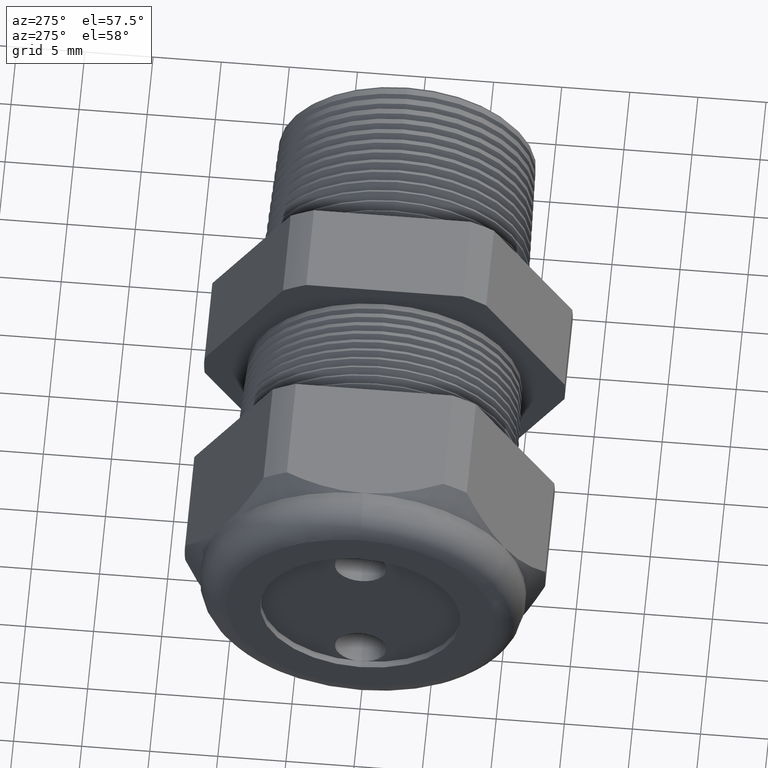
[diagram: clean part render]
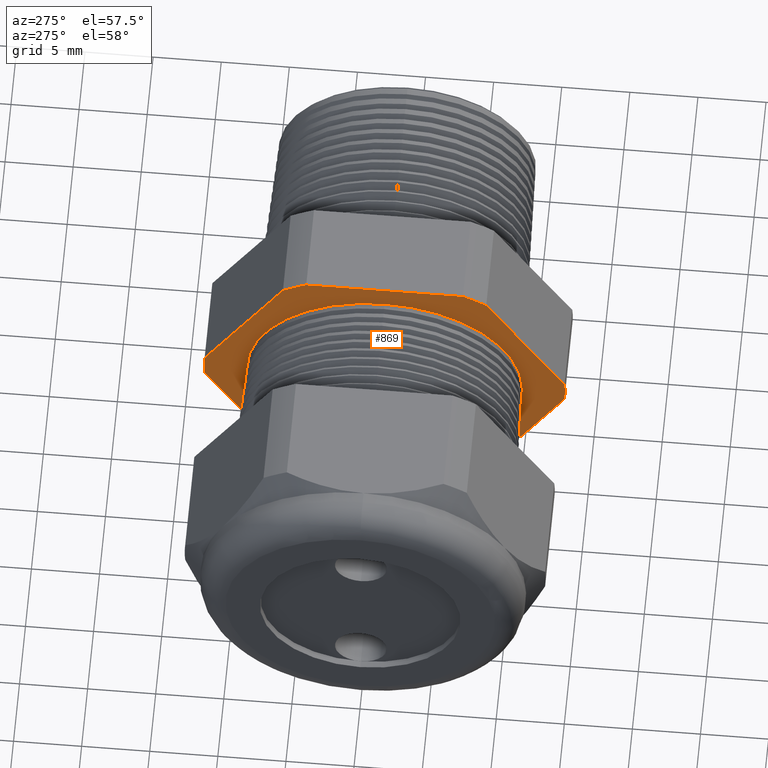
[diagram: same view with one face highlighted and labeled with its STEP entity id]
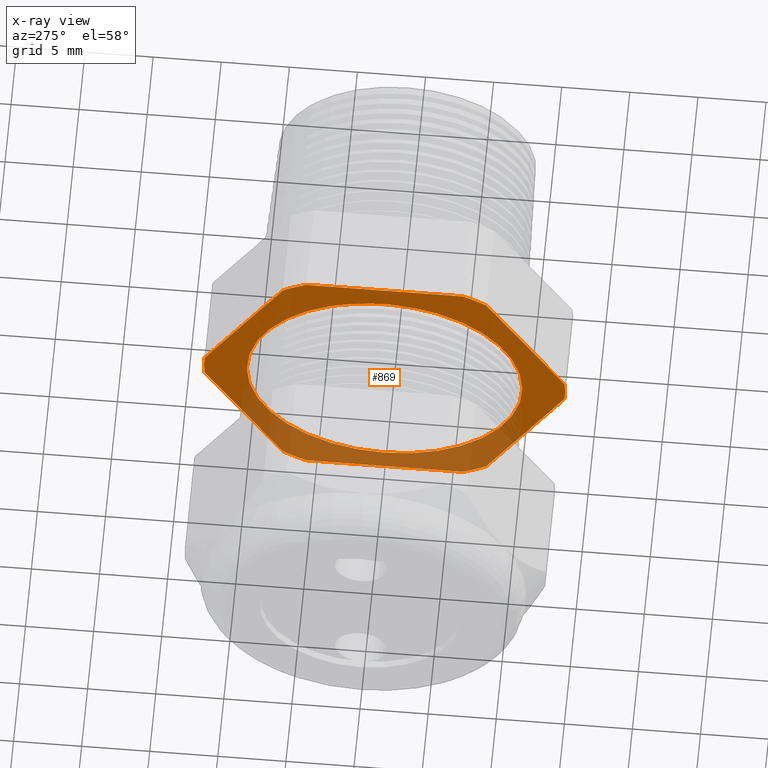
[diagram: x-ray of the same camera — body ghosted, the highlighted face saturated]
A machine part, auxiliary view. The second image highlights one B-rep face of the part: STEP entity #869.
The next image is the same camera in x-ray: the body ghosted, the highlighted face saturated — about 36% of this face is hidden behind the body in this view.
In plain terms, the highlighted planar face has unit normal (-1, 0, 0).
Its self-contained STEP definition (entity closure, byte-faithful):
#684 = VERTEX_POINT ( 'NONE', #3227 ) ;
#686 = EDGE_CURVE ( 'NONE', #701, #684, #3226, .T. ) ;
#698 = VERTEX_POINT ( 'NONE', #3262 ) ;
#701 = VERTEX_POINT ( 'NONE', #3261 ) ;
#748 = VERTEX_POINT ( 'NONE', #3369 ) ;
#750 = EDGE_CURVE ( 'NONE', #684, #748, #3368, .T. ) ;
#757 = EDGE_CURVE ( 'NONE', #698, #701, #3354, .T. ) ;
#770 = VERTEX_POINT ( 'NONE', #3395 ) ;
#772 = EDGE_CURVE ( 'NONE', #839, #770, #3394, .T. ) ;
#780 = VERTEX_POINT ( 'NONE', #3379 ) ;
#782 = EDGE_CURVE ( 'NONE', #798, #780, #3378, .T. ) ;
#789 = VERTEX_POINT ( 'NONE', #3431 ) ;
#791 = EDGE_CURVE ( 'NONE', #748, #789, #3430, .T. ) ;
#798 = VERTEX_POINT ( 'NONE', #3415 ) ;
#800 = EDGE_CURVE ( 'NONE', #789, #798, #3414, .T. ) ;
#804 = EDGE_CURVE ( 'NONE', #822, #698, #3408, .T. ) ;
#813 = VERTEX_POINT ( 'NONE', #3452 ) ;
#815 = EDGE_CURVE ( 'NONE', #830, #813, #3451, .T. ) ;
#822 = VERTEX_POINT ( 'NONE', #3436 ) ;
#824 = EDGE_CURVE ( 'NONE', #813, #822, #3498, .T. ) ;
#830 = VERTEX_POINT ( 'NONE', #3484 ) ;
#832 = EDGE_CURVE ( 'NONE', #770, #830, #3483, .T. ) ;
#839 = VERTEX_POINT ( 'NONE', #3469 ) ;
#841 = EDGE_CURVE ( 'NONE', #780, #839, #3534, .T. ) ;
#848 = ORIENTED_EDGE ( 'NONE', *, *, #865, .T. ) ;
#849 = ORIENTED_EDGE ( 'NONE', *, *, #5500, .T. ) ;
#850 = EDGE_LOOP ( 'NONE', ( #851, #852, #853, #854, #855, #856, #857, #917, #918, #919, #920, #921 ) ) ;
#851 = ORIENTED_EDGE ( 'NONE', *, *, #824, .T. ) ;
#852 = ORIENTED_EDGE ( 'NONE', *, *, #804, .T. ) ;
#853 = ORIENTED_EDGE ( 'NONE', *, *, #757, .T. ) ;
#854 = ORIENTED_EDGE ( 'NONE', *, *, #686, .T. ) ;
#855 = ORIENTED_EDGE ( 'NONE', *, *, #750, .T. ) ;
#856 = ORIENTED_EDGE ( 'NONE', *, *, #791, .T. ) ;
#857 = ORIENTED_EDGE ( 'NONE', *, *, #800, .T. ) ;
#865 = EDGE_CURVE ( 'NONE', #5497, #5496, #3517, .T. ) ;
#869 = ADVANCED_FACE ( 'NONE', ( #3508, #3507 ), #3506, .T. ) ;
#870 = EDGE_LOOP ( 'NONE', ( #848, #849 ) ) ;
#917 = ORIENTED_EDGE ( 'NONE', *, *, #782, .T. ) ;
#918 = ORIENTED_EDGE ( 'NONE', *, *, #841, .T. ) ;
#919 = ORIENTED_EDGE ( 'NONE', *, *, #772, .T. ) ;
#920 = ORIENTED_EDGE ( 'NONE', *, *, #832, .T. ) ;
#921 = ORIENTED_EDGE ( 'NONE', *, *, #815, .T. ) ;
#3222 = DIRECTION ( 'NONE',  ( 0.0000000000000000000, 0.0000000000000000000, 1.000000000000000000 ) ) ;
#3223 = DIRECTION ( 'NONE',  ( -1.000000000000000000, 0.0000000000000000000, 0.0000000000000000000 ) ) ;
#3224 = CARTESIAN_POINT ( 'NONE',  ( -0.5659055118110235500, 0.0000000000000000000, 0.0000000000000000000 ) ) ;
#3225 = AXIS2_PLACEMENT_3D ( 'NONE', #3224, #3223, #3222 ) ;
#3226 = CIRCLE ( 'NONE', #3225, 0.5217000000000000500 ) ;
#3227 = CARTESIAN_POINT ( 'NONE',  ( -0.5659055118110235500, 0.2264307620443831200, -0.4700000000000000300 ) ) ;
#3261 = CARTESIAN_POINT ( 'NONE',  ( -0.5659055118110235500, 0.2938165587564948700, -0.4310947921287048300 ) ) ;
#3262 = CARTESIAN_POINT ( 'NONE',  ( -0.5659055118110235500, 0.5202473208008777700, -0.03890520787129496400 ) ) ;
#3351 = DIRECTION ( 'NONE',  ( 0.0000000000000000000, -0.4999999999999998300, -0.8660254037844388200 ) ) ;
#3352 = VECTOR ( 'NONE', #3351, 39.37007874015748100 ) ;
#3353 = CARTESIAN_POINT ( 'NONE',  ( -0.5659055118110235500, 0.6420319397786861100, 0.1720319397786860800 ) ) ;
#3354 = LINE ( 'NONE', #3353, #3352 ) ;
#3365 = DIRECTION ( 'NONE',  ( 0.0000000000000000000, -1.000000000000000000, 0.0000000000000000000 ) ) ;
#3366 = VECTOR ( 'NONE', #3365, 39.37007874015748100 ) ;
#3367 = CARTESIAN_POINT ( 'NONE',  ( -0.5659055118110235500, 0.9399999999999999500, -0.4700000000000000300 ) ) ;
#3368 = LINE ( 'NONE', #3367, #3366 ) ;
#3369 = CARTESIAN_POINT ( 'NONE',  ( -0.5659055118110235500, -0.2264307620443830900, -0.4700000000000000300 ) ) ;
#3374 = DIRECTION ( 'NONE',  ( 0.0000000000000000000, 0.0000000000000000000, 1.000000000000000000 ) ) ;
#3375 = DIRECTION ( 'NONE',  ( -1.000000000000000000, 0.0000000000000000000, 0.0000000000000000000 ) ) ;
#3376 = CARTESIAN_POINT ( 'NONE',  ( -0.5659055118110235500, 0.0000000000000000000, 0.0000000000000000000 ) ) ;
#3377 = AXIS2_PLACEMENT_3D ( 'NONE', #3376, #3375, #3374 ) ;
#3378 = CIRCLE ( 'NONE', #3377, 0.5217000000000000500 ) ;
#3379 = CARTESIAN_POINT ( 'NONE',  ( -0.5659055118110235500, -0.5202473208008777700, 0.03890520787129464500 ) ) ;
#3390 = DIRECTION ( 'NONE',  ( 0.0000000000000000000, 0.0000000000000000000, 1.000000000000000000 ) ) ;
#3391 = DIRECTION ( 'NONE',  ( -1.000000000000000000, 0.0000000000000000000, 0.0000000000000000000 ) ) ;
#3392 = CARTESIAN_POINT ( 'NONE',  ( -0.5659055118110235500, 0.0000000000000000000, 0.0000000000000000000 ) ) ;
#3393 = AXIS2_PLACEMENT_3D ( 'NONE', #3392, #3391, #3390 ) ;
#3394 = CIRCLE ( 'NONE', #3393, 0.5217000000000000500 ) ;
#3395 = CARTESIAN_POINT ( 'NONE',  ( -0.5659055118110235500, -0.2264307620443835300, 0.4699999999999997000 ) ) ;
#3405 = DIRECTION ( 'NONE',  ( -1.000000000000000000, 0.0000000000000000000, 0.0000000000000000000 ) ) ;
#3406 = CARTESIAN_POINT ( 'NONE',  ( -0.5659055118110235500, 0.0000000000000000000, 0.0000000000000000000 ) ) ;
#3407 = AXIS2_PLACEMENT_3D ( 'NONE', #3406, #3405, #3468 ) ;
#3408 = CIRCLE ( 'NONE', #3407, 0.5217000000000000500 ) ;
#3411 = DIRECTION ( 'NONE',  ( 0.0000000000000000000, -0.5000000000000002200, 0.8660254037844386000 ) ) ;
#3412 = VECTOR ( 'NONE', #3411, 39.37007874015747400 ) ;
#3413 = CARTESIAN_POINT ( 'NONE',  ( -0.5659055118110235500, -0.1720319397786861700, -0.6420319397786863300 ) ) ;
#3414 = LINE ( 'NONE', #3413, #3412 ) ;
#3415 = CARTESIAN_POINT ( 'NONE',  ( -0.5659055118110235500, -0.5202473208008777700, -0.03890520787129495000 ) ) ;
#3426 = DIRECTION ( 'NONE',  ( 0.0000000000000000000, 0.0000000000000000000, 1.000000000000000000 ) ) ;
#3427 = DIRECTION ( 'NONE',  ( -1.000000000000000000, 0.0000000000000000000, 0.0000000000000000000 ) ) ;
#3428 = CARTESIAN_POINT ( 'NONE',  ( -0.5659055118110235500, 0.0000000000000000000, 0.0000000000000000000 ) ) ;
#3429 = AXIS2_PLACEMENT_3D ( 'NONE', #3428, #3427, #3426 ) ;
#3430 = CIRCLE ( 'NONE', #3429, 0.5217000000000000500 ) ;
#3431 = CARTESIAN_POINT ( 'NONE',  ( -0.5659055118110235500, -0.2938165587564942600, -0.4310947921287053300 ) ) ;
#3436 = CARTESIAN_POINT ( 'NONE',  ( -0.5659055118110235500, 0.5202473208008776600, 0.03890520787129531800 ) ) ;
#3447 = DIRECTION ( 'NONE',  ( 0.0000000000000000000, 0.0000000000000000000, 1.000000000000000000 ) ) ;
#3448 = DIRECTION ( 'NONE',  ( -1.000000000000000000, 0.0000000000000000000, 0.0000000000000000000 ) ) ;
#3449 = CARTESIAN_POINT ( 'NONE',  ( -0.5659055118110235500, 0.0000000000000000000, 0.0000000000000000000 ) ) ;
#3450 = AXIS2_PLACEMENT_3D ( 'NONE', #3449, #3448, #3447 ) ;
#3451 = CIRCLE ( 'NONE', #3450, 0.5217000000000000500 ) ;
#3452 = CARTESIAN_POINT ( 'NONE',  ( -0.5659055118110235500, 0.2938165587564947600, 0.4310947921287048800 ) ) ;
#3468 = DIRECTION ( 'NONE',  ( 0.0000000000000000000, 0.0000000000000000000, 1.000000000000000000 ) ) ;
#3469 = CARTESIAN_POINT ( 'NONE',  ( -0.5659055118110235500, -0.2938165587564945900, 0.4310947921287050500 ) ) ;
#3480 = DIRECTION ( 'NONE',  ( 0.0000000000000000000, 1.000000000000000000, 0.0000000000000000000 ) ) ;
#3481 = VECTOR ( 'NONE', #3480, 39.37007874015748100 ) ;
#3482 = CARTESIAN_POINT ( 'NONE',  ( -0.5659055118110235500, 0.9399999999999999500, 0.4699999999999999200 ) ) ;
#3483 = LINE ( 'NONE', #3482, #3481 ) ;
#3484 = CARTESIAN_POINT ( 'NONE',  ( -0.5659055118110235500, 0.2264307620443832800, 0.4699999999999999200 ) ) ;
#3495 = DIRECTION ( 'NONE',  ( 0.0000000000000000000, 0.5000000000000001100, -0.8660254037844384900 ) ) ;
#3496 = VECTOR ( 'NONE', #3495, 39.37007874015748900 ) ;
#3497 = CARTESIAN_POINT ( 'NONE',  ( -0.5659055118110235500, 0.6420319397786862200, -0.1720319397786861700 ) ) ;
#3498 = LINE ( 'NONE', #3497, #3496 ) ;
#3502 = DIRECTION ( 'NONE',  ( 0.0000000000000000000, 0.0000000000000000000, 1.000000000000000000 ) ) ;
#3503 = DIRECTION ( 'NONE',  ( -1.000000000000000000, 0.0000000000000000000, 0.0000000000000000000 ) ) ;
#3504 = CARTESIAN_POINT ( 'NONE',  ( -0.5659055118110235500, 0.9399999999999999500, 0.0000000000000000000 ) ) ;
#3505 = AXIS2_PLACEMENT_3D ( 'NONE', #3504, #3503, #3502 ) ;
#3506 = PLANE ( 'NONE',  #3505 ) ;
#3507 = FACE_OUTER_BOUND ( 'NONE', #850, .T. ) ;
#3508 = FACE_BOUND ( 'NONE', #870, .T. ) ;
#3514 = DIRECTION ( 'NONE',  ( 0.0000000000000000000, 0.0000000000000000000, -1.000000000000000000 ) ) ;
#3515 = DIRECTION ( 'NONE',  ( 1.000000000000000000, 0.0000000000000000000, 0.0000000000000000000 ) ) ;
#3516 = AXIS2_PLACEMENT_3D ( 'NONE', #3522, #3515, #3514 ) ;
#3517 = CIRCLE ( 'NONE', #3516, 0.3981434363741429600 ) ;
#3522 = CARTESIAN_POINT ( 'NONE',  ( -0.5659055118110234400, 0.0000000000000000000, 0.0000000000000000000 ) ) ;
#3531 = DIRECTION ( 'NONE',  ( 0.0000000000000000000, 0.4999999999999998300, 0.8660254037844388200 ) ) ;
#3532 = VECTOR ( 'NONE', #3531, 39.37007874015748100 ) ;
#3533 = CARTESIAN_POINT ( 'NONE',  ( -0.5659055118110235500, -0.1720319397786862800, 0.6420319397786858900 ) ) ;
#3534 = LINE ( 'NONE', #3533, #3532 ) ;
#5184 = DIRECTION ( 'NONE',  ( 0.0000000000000000000, 0.0000000000000000000, -1.000000000000000000 ) ) ;
#5185 = DIRECTION ( 'NONE',  ( 1.000000000000000000, 0.0000000000000000000, 0.0000000000000000000 ) ) ;
#5186 = CARTESIAN_POINT ( 'NONE',  ( -0.5659055118110234400, 0.0000000000000000000, 0.0000000000000000000 ) ) ;
#5187 = AXIS2_PLACEMENT_3D ( 'NONE', #5186, #5185, #5184 ) ;
#5188 = CIRCLE ( 'NONE', #5187, 0.3981434363741429600 ) ;
#5190 = CARTESIAN_POINT ( 'NONE',  ( -0.5659055118110234400, 0.0000000000000000000, 0.3981434363741429600 ) ) ;
#5191 = CARTESIAN_POINT ( 'NONE',  ( -0.5659055118110234400, 4.879503911633951500E-017, -0.3981434363741429600 ) ) ;
#5496 = VERTEX_POINT ( 'NONE', #5191 ) ;
#5497 = VERTEX_POINT ( 'NONE', #5190 ) ;
#5500 = EDGE_CURVE ( 'NONE', #5496, #5497, #5188, .T. ) ;